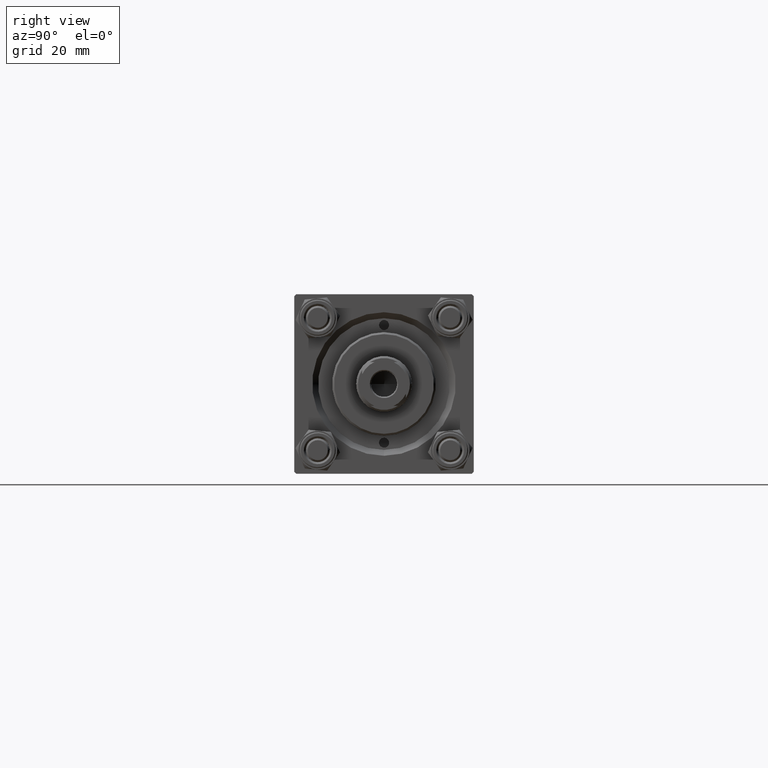
[diagram: clean part render]
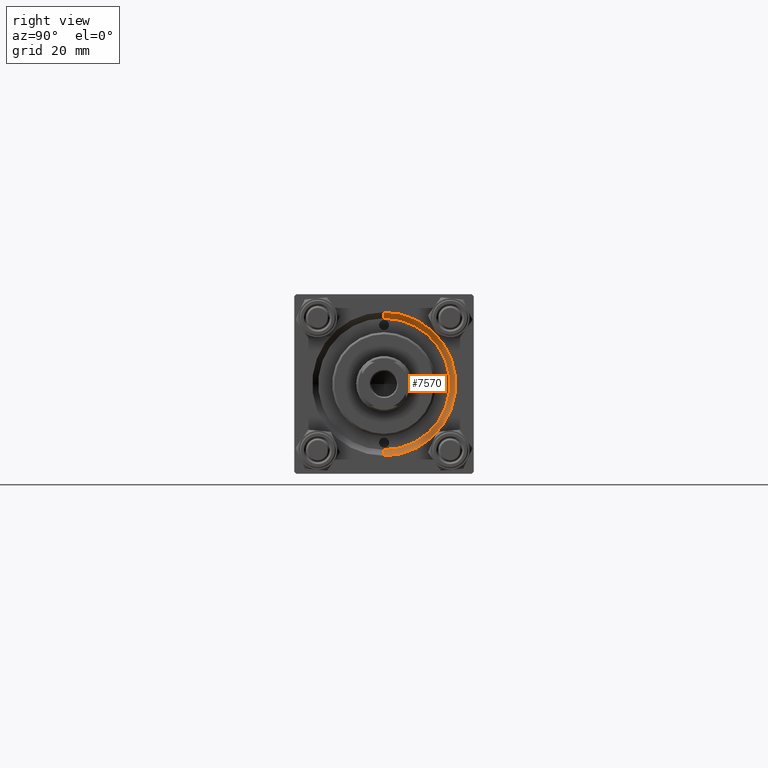
[diagram: same view with one face highlighted and labeled with its STEP entity id]
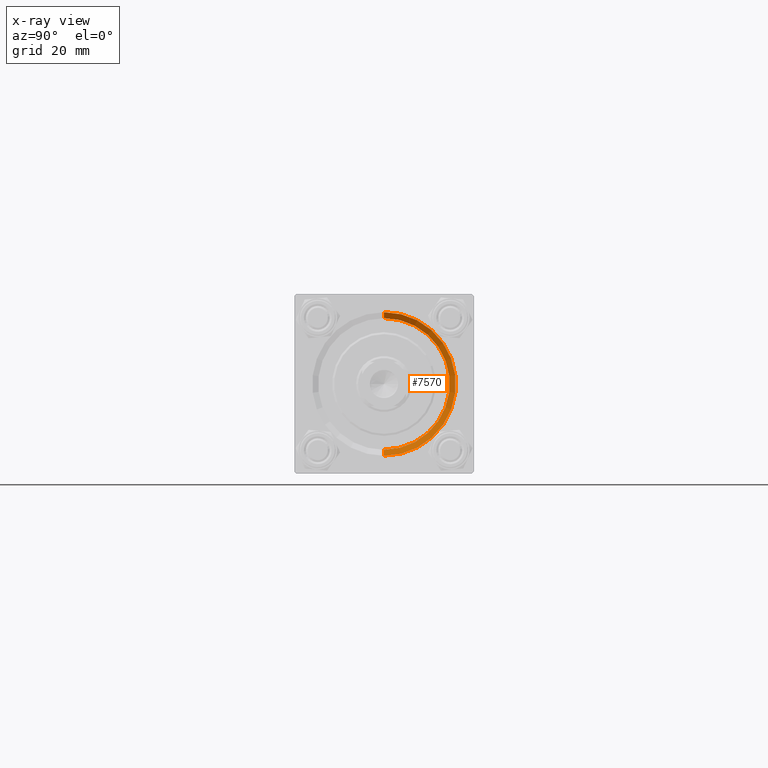
[diagram: x-ray of the same camera — body ghosted, the highlighted face saturated]
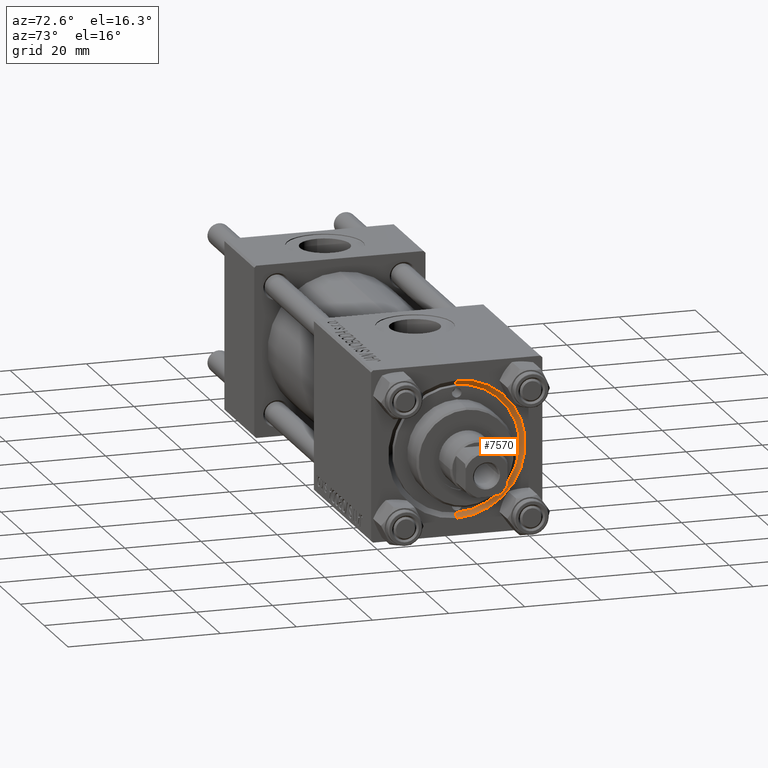
[diagram: same view with one face highlighted and labeled with its STEP entity id]
A machine part, right view. The second image highlights one B-rep face of the part: STEP entity #7570.
The next image is the same camera in x-ray: the body ghosted, the highlighted face saturated — about 0% of this face is hidden behind the body in this view.
A second angle (auxiliary view) of the same face is appended — the face is thin or edge-on in the first view.
In plain terms, the highlighted conical surface has half-angle 45 deg.
Its self-contained STEP definition (entity closure, byte-faithful):
#892 = CIRCLE ( 'NONE', #40492, 16.50000000000000000 ) ;
#2866 = DIRECTION ( 'NONE',  ( 0.7071067811865474617, 0.000000000000000000, -0.7071067811865474617 ) ) ;
#6575 = CARTESIAN_POINT ( 'NONE',  ( 121.5000000000000142, 0.000000000000000000, 0.000000000000000000 ) ) ;
#6802 = DIRECTION ( 'NONE',  ( 1.000000000000000000, 0.000000000000000000, 0.000000000000000000 ) ) ;
#7293 = CARTESIAN_POINT ( 'NONE',  ( 121.5000000000000142, 0.000000000000000000, 0.000000000000000000 ) ) ;
#7570 = ADVANCED_FACE ( 'NONE', ( #50051 ), #22524, .F. ) ;
#10455 = LINE ( 'NONE', #14000, #30259 ) ;
#10518 = CIRCLE ( 'NONE', #18601, 18.00000000000000355 ) ;
#11071 = CARTESIAN_POINT ( 'NONE',  ( 123.0000000000000142, 0.000000000000000000, 0.000000000000000000 ) ) ;
#14000 = CARTESIAN_POINT ( 'NONE',  ( 121.5000000000000142, 0.000000000000000000, -16.50000000000000000 ) ) ;
#14454 = AXIS2_PLACEMENT_3D ( 'NONE', #7293, #6802, #30105 ) ;
#17138 = EDGE_CURVE ( 'NONE', #39279, #42148, #43572, .T. ) ;
#17433 = EDGE_CURVE ( 'NONE', #24686, #39279, #892, .T. ) ;
#18601 = AXIS2_PLACEMENT_3D ( 'NONE', #11071, #22719, #38142 ) ;
#19028 = ORIENTED_EDGE ( 'NONE', *, *, #17433, .F. ) ;
#22524 = CONICAL_SURFACE ( 'NONE', #14454, 16.50000000000000000, 0.7853981633974482790 ) ;
#22719 = DIRECTION ( 'NONE',  ( -1.000000000000000000, 0.000000000000000000, -0.000000000000000000 ) ) ;
#22815 = CARTESIAN_POINT ( 'NONE',  ( 121.5000000000000142, 2.020667218593133100E-15, 16.50000000000000000 ) ) ;
#24300 = EDGE_CURVE ( 'NONE', #24686, #25719, #10455, .T. ) ;
#24686 = VERTEX_POINT ( 'NONE', #36978 ) ;
#25719 = VERTEX_POINT ( 'NONE', #34687 ) ;
#28369 = ORIENTED_EDGE ( 'NONE', *, *, #24300, .T. ) ;
#29528 = EDGE_CURVE ( 'NONE', #42148, #25719, #10518, .T. ) ;
#30105 = DIRECTION ( 'NONE',  ( 0.000000000000000000, 0.000000000000000000, -1.000000000000000000 ) ) ;
#30134 = DIRECTION ( 'NONE',  ( 0.000000000000000000, 0.000000000000000000, 1.000000000000000000 ) ) ;
#30259 = VECTOR ( 'NONE', #2866, 1000.000000000000114 ) ;
#31335 = ORIENTED_EDGE ( 'NONE', *, *, #17138, .F. ) ;
#31605 = VECTOR ( 'NONE', #35243, 1000.000000000000114 ) ;
#34687 = CARTESIAN_POINT ( 'NONE',  ( 123.0000000000000142, 0.000000000000000000, -18.00000000000000355 ) ) ;
#35243 = DIRECTION ( 'NONE',  ( 0.7071067811865474617, 8.659560562354932858E-17, 0.7071067811865474617 ) ) ;
#36515 = DIRECTION ( 'NONE',  ( 1.000000000000000000, 0.000000000000000000, 0.000000000000000000 ) ) ;
#36978 = CARTESIAN_POINT ( 'NONE',  ( 121.5000000000000142, 0.000000000000000000, -16.50000000000000000 ) ) ;
#38142 = DIRECTION ( 'NONE',  ( 0.000000000000000000, 0.000000000000000000, 1.000000000000000000 ) ) ;
#39022 = CARTESIAN_POINT ( 'NONE',  ( 121.5000000000000142, 2.020667218593133100E-15, 16.50000000000000000 ) ) ;
#39279 = VERTEX_POINT ( 'NONE', #22815 ) ;
#40492 = AXIS2_PLACEMENT_3D ( 'NONE', #6575, #36515, #30134 ) ;
#42148 = VERTEX_POINT ( 'NONE', #47335 ) ;
#43572 = LINE ( 'NONE', #39022, #31605 ) ;
#44726 = ORIENTED_EDGE ( 'NONE', *, *, #29528, .F. ) ;
#47335 = CARTESIAN_POINT ( 'NONE',  ( 123.0000000000000142, 2.204364238465235822E-15, 18.00000000000000355 ) ) ;
#48363 = EDGE_LOOP ( 'NONE', ( #31335, #19028, #28369, #44726 ) ) ;
#50051 = FACE_OUTER_BOUND ( 'NONE', #48363, .T. ) ;